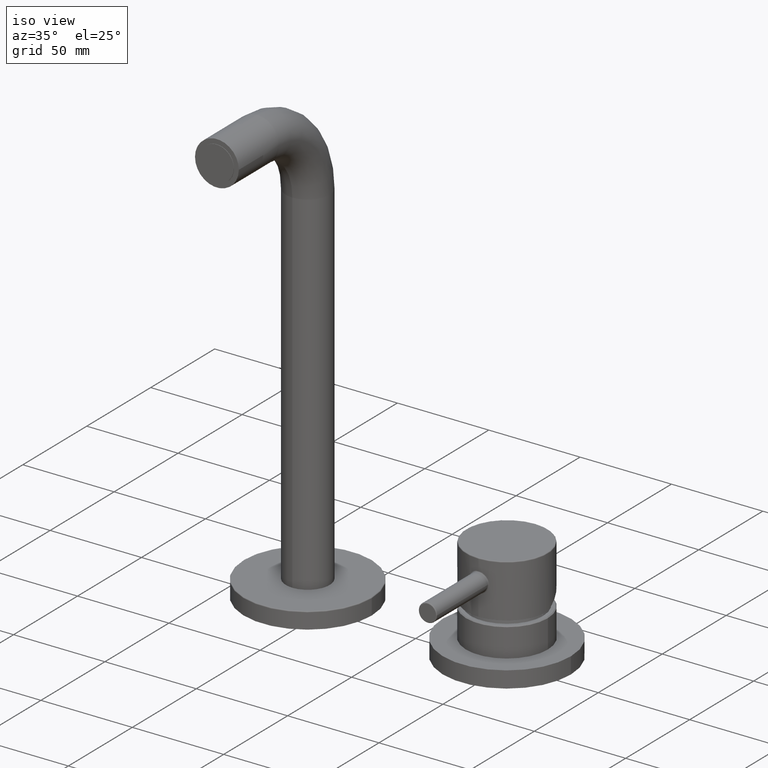
[diagram: clean part render]
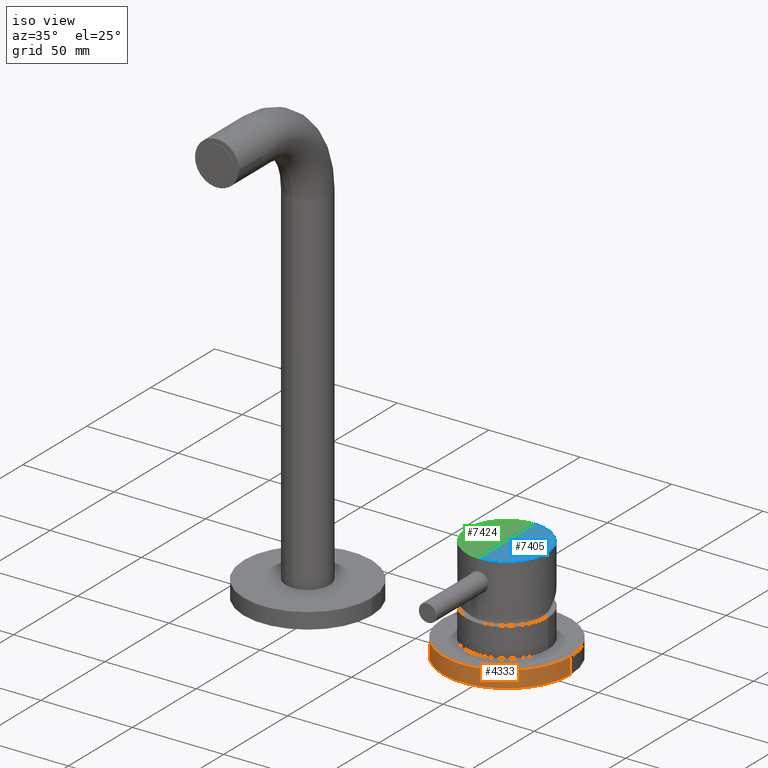
[diagram: same view with three faces highlighted in distinct colors, each labeled with its STEP entity id]
A machine part, iso view with three faces highlighted in distinct colors.
Their STEP definitions:

[orange] entity #4333 — the highlighted cylindrical surface (partial cylindrical patch) has radius 35 mm, axis along (0, 0, -1).
#972=CARTESIAN_POINT('',(0.E0,0.E0,5.05E1));
#973=DIRECTION('',(0.E0,0.E0,1.E0));
#974=DIRECTION('',(-1.E0,0.E0,0.E0));
#975=AXIS2_PLACEMENT_3D('',#972,#973,#974);
#982=DIRECTION('',(0.E0,0.E0,1.E0));
#983=VECTOR('',#982,9.E0);
#984=CARTESIAN_POINT('',(-3.5E1,0.E0,4.15E1));
#985=LINE('',#984,#983);
#986=DIRECTION('',(0.E0,0.E0,1.E0));
#987=VECTOR('',#986,9.E0);
#988=CARTESIAN_POINT('',(3.5E1,0.E0,4.15E1));
#989=LINE('',#988,#987);
#990=CARTESIAN_POINT('',(0.E0,0.E0,4.15E1));
#991=DIRECTION('',(0.E0,0.E0,1.E0));
#992=DIRECTION('',(-1.E0,0.E0,0.E0));
#993=AXIS2_PLACEMENT_3D('',#990,#991,#992);
#3204=CARTESIAN_POINT('',(-3.5E1,0.E0,4.15E1));
#3205=CARTESIAN_POINT('',(-3.5E1,0.E0,5.05E1));
#3206=VERTEX_POINT('',#3204);
#3207=VERTEX_POINT('',#3205);
#3208=CARTESIAN_POINT('',(3.5E1,0.E0,4.15E1));
#3209=CARTESIAN_POINT('',(3.5E1,0.E0,5.05E1));
#3210=VERTEX_POINT('',#3208);
#3211=VERTEX_POINT('',#3209);
#4319=CARTESIAN_POINT('',(0.E0,0.E0,5.095E1));
#4320=DIRECTION('',(0.E0,0.E0,-1.E0));
#4321=DIRECTION('',(1.E0,0.E0,0.E0));
#4322=AXIS2_PLACEMENT_3D('',#4319,#4320,#4321);
#4323=CYLINDRICAL_SURFACE('',#4322,3.5E1);
#4325=ORIENTED_EDGE('',*,*,#4324,.T.);
#4326=ORIENTED_EDGE('',*,*,#4300,.T.);
#4328=ORIENTED_EDGE('',*,*,#4327,.F.);
#4330=ORIENTED_EDGE('',*,*,#4329,.F.);
#4331=EDGE_LOOP('',(#4325,#4326,#4328,#4330));
#4332=FACE_OUTER_BOUND('',#4331,.F.);
#4333=ADVANCED_FACE('',(#4332),#4323,.T.);
#976=CIRCLE('',#975,3.5E1);
#994=CIRCLE('',#993,3.5E1);
#4300=EDGE_CURVE('',#3207,#3211,#976,.T.);
#4324=EDGE_CURVE('',#3206,#3207,#985,.T.);
#4327=EDGE_CURVE('',#3210,#3211,#989,.T.);
#4329=EDGE_CURVE('',#3206,#3210,#994,.T.);

[blue] entity #7405 — the highlighted conical surface has half-angle 89 deg.
#2794=CARTESIAN_POINT('',(1.841044205552E-13,2.022149856232E-14,
9.830857521602E1));
#2795=DIRECTION('',(0.E0,0.E0,1.E0));
#2796=DIRECTION('',(8.464306325022E-14,-1.E0,0.E0));
#2797=AXIS2_PLACEMENT_3D('',#2794,#2795,#2796);
#2799=DIRECTION('',(-8.439672789237E-14,9.998476951564E-1,1.745240643728E-2));
#2800=VECTOR('',#2799,2.176204066742E1);
#2801=CARTESIAN_POINT('',(2.020665112610E-12,-2.175872620322E1,
9.830857521602E1));
#2802=LINE('',#2801,#2800);
#2803=DIRECTION('',(8.435836697097E-14,-9.998476951564E-1,1.745240643728E-2));
#2804=VECTOR('',#2803,2.176204066742E1);
#2805=CARTESIAN_POINT('',(-1.651790124640E-12,2.175872620322E1,
9.830857521602E1));
#2806=LINE('',#2805,#2804);
#2915=CARTESIAN_POINT('',(2.025829658818E-12,-2.175872620322E1,
9.830857521602E1));
#2916=CARTESIAN_POINT('',(-1.654956142268E-12,2.175872620322E1,
9.830857521602E1));
#2917=VERTEX_POINT('',#2915);
#2918=VERTEX_POINT('',#2916);
#2923=CARTESIAN_POINT('',(1.840200880190E-13,2.131628207280E-14,
9.868837519465E1));
#2924=VERTEX_POINT('',#2923);
#7393=CARTESIAN_POINT('',(1.840630976125E-13,2.025496307081E-14,
9.849467720555E1));
#7394=DIRECTION('',(0.E0,0.E0,-1.E0));
#7395=DIRECTION('',(-8.476552793013E-14,1.E0,0.E0));
#7396=AXIS2_PLACEMENT_3D('',#7393,#7394,#7395);
#7397=CONICAL_SURFACE('',#7396,1.109695036364E1,8.9E1);
#7398=ORIENTED_EDGE('',*,*,#7376,.F.);
#7400=ORIENTED_EDGE('',*,*,#7399,.T.);
#7402=ORIENTED_EDGE('',*,*,#7401,.F.);
#7403=EDGE_LOOP('',(#7398,#7400,#7402));
#7404=FACE_OUTER_BOUND('',#7403,.F.);
#7405=ADVANCED_FACE('',(#7404),#7397,.T.);
#2798=CIRCLE('',#2797,2.175872620322E1);
#7376=EDGE_CURVE('',#2917,#2918,#2798,.T.);
#7399=EDGE_CURVE('',#2917,#2924,#2802,.T.);
#7401=EDGE_CURVE('',#2918,#2924,#2806,.T.);

[green] entity #7424 — the highlighted conical surface has half-angle 89 deg.
#2799=DIRECTION('',(-8.439672789237E-14,9.998476951564E-1,1.745240643728E-2));
#2800=VECTOR('',#2799,2.176204066742E1);
#2801=CARTESIAN_POINT('',(2.020665112610E-12,-2.175872620322E1,
9.830857521602E1));
#2802=LINE('',#2801,#2800);
#2803=DIRECTION('',(8.435836697097E-14,-9.998476951564E-1,1.745240643728E-2));
#2804=VECTOR('',#2803,2.176204066742E1);
#2805=CARTESIAN_POINT('',(-1.651790124640E-12,2.175872620322E1,
9.830857521602E1));
#2806=LINE('',#2805,#2804);
#2807=CARTESIAN_POINT('',(1.841044205552E-13,2.022149856232E-14,
9.830857521602E1));
#2808=DIRECTION('',(0.E0,0.E0,1.E0));
#2809=DIRECTION('',(-8.464306729475E-14,1.E0,0.E0));
#2810=AXIS2_PLACEMENT_3D('',#2807,#2808,#2809);
#2915=CARTESIAN_POINT('',(2.025829658818E-12,-2.175872620322E1,
9.830857521602E1));
#2916=CARTESIAN_POINT('',(-1.654956142268E-12,2.175872620322E1,
9.830857521602E1));
#2917=VERTEX_POINT('',#2915);
#2918=VERTEX_POINT('',#2916);
#2923=CARTESIAN_POINT('',(1.840200880190E-13,2.131628207280E-14,
9.868837519465E1));
#2924=VERTEX_POINT('',#2923);
#7413=CARTESIAN_POINT('',(1.840630976125E-13,2.025496307081E-14,
9.849467720555E1));
#7414=DIRECTION('',(0.E0,0.E0,-1.E0));
#7415=DIRECTION('',(-8.476552793013E-14,1.E0,0.E0));
#7416=AXIS2_PLACEMENT_3D('',#7413,#7414,#7415);
#7417=CONICAL_SURFACE('',#7416,1.109695036364E1,8.9E1);
#7419=ORIENTED_EDGE('',*,*,#7418,.F.);
#7420=ORIENTED_EDGE('',*,*,#7401,.T.);
#7421=ORIENTED_EDGE('',*,*,#7399,.F.);
#7422=EDGE_LOOP('',(#7419,#7420,#7421));
#7423=FACE_OUTER_BOUND('',#7422,.F.);
#7424=ADVANCED_FACE('',(#7423),#7417,.T.);
#2811=CIRCLE('',#2810,2.175872620322E1);
#7399=EDGE_CURVE('',#2917,#2924,#2802,.T.);
#7401=EDGE_CURVE('',#2918,#2924,#2806,.T.);
#7418=EDGE_CURVE('',#2918,#2917,#2811,.T.);